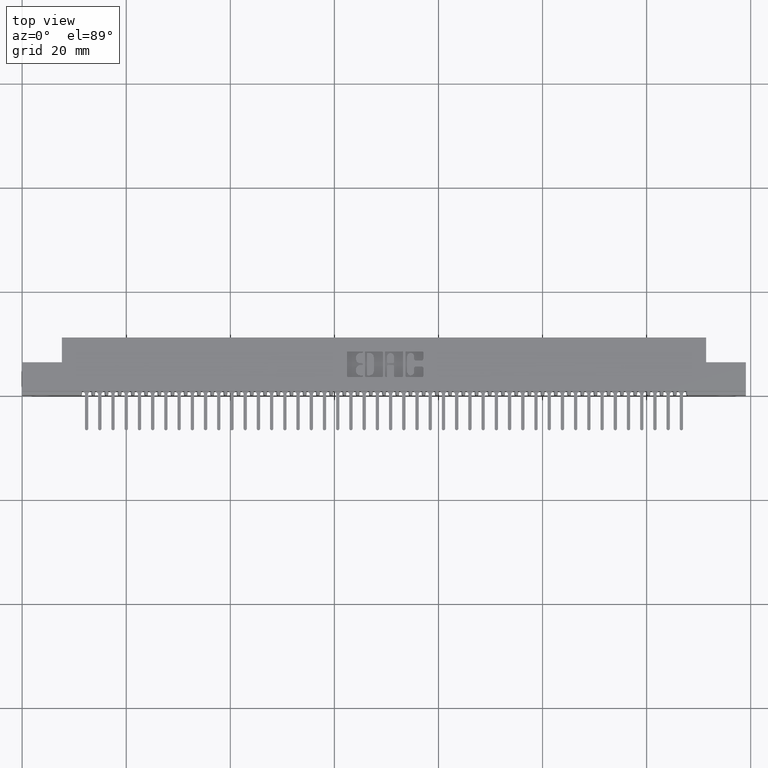
[diagram: clean part render]
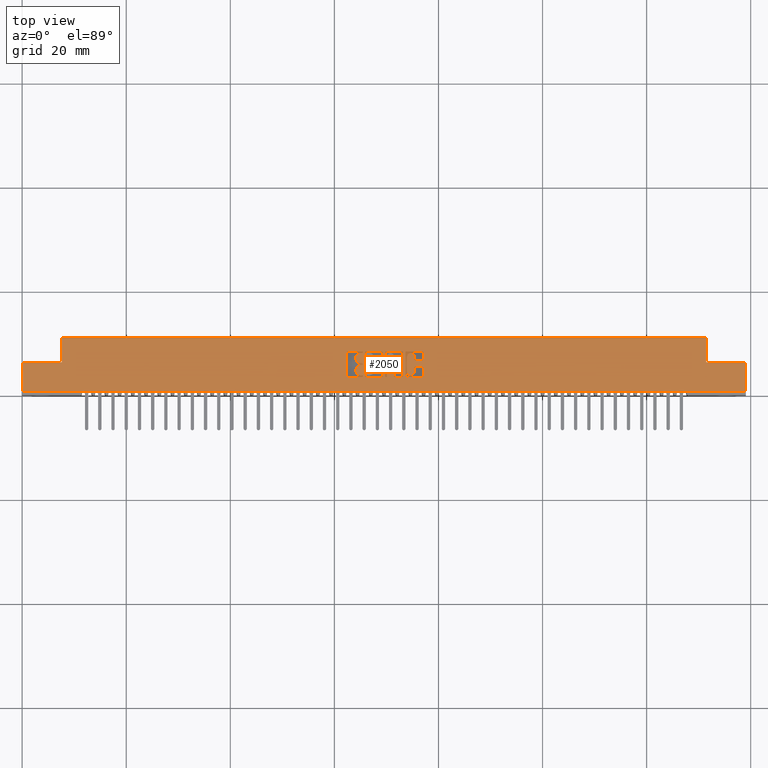
[diagram: same view with one face highlighted and labeled with its STEP entity id]
A machine part, top view. The second image highlights one B-rep face of the part: STEP entity #2050.
In plain terms, the highlighted planar face has unit normal (0, 0, -1).
Its self-contained STEP definition (entity closure, byte-faithful):
#6 = CARTESIAN_POINT ( 'NONE',  ( 2.570633606535335200, 0.1427142671046498500, 0.0000000000000000000 ) ) ;
#161 = CARTESIAN_POINT ( 'NONE',  ( 0.0000000000000000000, 0.2153502266127594300, 0.0000000000000000000 ) ) ;
#231 = LINE ( 'NONE', #32232, #20468 ) ;
#371 = EDGE_LOOP ( 'NONE', ( #30347, #39809, #19286, #41382, #15879, #19666, #34605, #27005, #25622, #21007, #4348, #27406, #33699, #38010 ) ) ;
#417 = VERTEX_POINT ( 'NONE', #45062 ) ;
#433 = VERTEX_POINT ( 'NONE', #23703 ) ;
#475 = DIRECTION ( 'NONE',  ( 1.000000000000000000, 0.0000000000000000000, 0.0000000000000000000 ) ) ;
#575 = DIRECTION ( 'NONE',  ( 0.0000000000000000000, 1.000000000000000000, -0.0000000000000000000 ) ) ;
#582 = DIRECTION ( 'NONE',  ( 1.000000000000000000, 0.0000000000000000000, 0.0000000000000000000 ) ) ;
#620 = CARTESIAN_POINT ( 'NONE',  ( 2.570633606415388500, 0.2271290308573587200, 0.0000000000000000000 ) ) ;
#638 = ORIENTED_EDGE ( 'NONE', *, *, #40673, .F. ) ;
#799 = VECTOR ( 'NONE', #26635, 39.37007874015748100 ) ;
#913 = VERTEX_POINT ( 'NONE', #620 ) ;
#966 = CARTESIAN_POINT ( 'NONE',  ( 2.525726915352927400, 0.0000000000000000000, 0.0000000000000000000 ) ) ;
#1032 = CARTESIAN_POINT ( 'NONE',  ( 2.593455039759168900, 0.3223410318342119800, 0.0000000000000000000 ) ) ;
#1056 = VECTOR ( 'NONE', #29722, 39.37007874015748100 ) ;
#1323 = DIRECTION ( 'NONE',  ( -0.0000000000000000000, 0.0000000000000000000, 1.000000000000000000 ) ) ;
#1488 = CARTESIAN_POINT ( 'NONE',  ( 0.0000000000000000000, 0.3321567020380529800, 0.0000000000000000000 ) ) ;
#1532 = VERTEX_POINT ( 'NONE', #47882 ) ;
#1624 = CARTESIAN_POINT ( 'NONE',  ( 2.456526440416115300, 0.1456589681657918500, 0.0000000000000000000 ) ) ;
#1921 = ORIENTED_EDGE ( 'NONE', *, *, #13620, .F. ) ;
#1938 = VERTEX_POINT ( 'NONE', #44263 ) ;
#2027 = DIRECTION ( 'NONE',  ( -0.0000000000000000000, 1.000000000000000000, -0.0000000000000000000 ) ) ;
#2050 = ADVANCED_FACE ( 'NONE', ( #41632, #7341, #40298, #28946, #17494 ), #31196, .F. ) ;
#2056 = CARTESIAN_POINT ( 'NONE',  ( 2.728911288571669300, 0.3223410318342119800, 0.0000000000000000000 ) ) ;
#2176 = VERTEX_POINT ( 'NONE', #48619 ) ;
#2216 = AXIS2_PLACEMENT_3D ( 'NONE', #8499, #38574, #12866 ) ;
#2740 = EDGE_CURVE ( 'NONE', #4884, #41142, #20652, .T. ) ;
#2814 = VECTOR ( 'NONE', #26765, 39.37007874015748100 ) ;
#2837 = CARTESIAN_POINT ( 'NONE',  ( 2.759830649713646900, 0.2173133606535475000, 0.0000000000000000000 ) ) ;
#2972 = DIRECTION ( 'NONE',  ( 1.000000000000000000, 0.0000000000000000000, 0.0000000000000000000 ) ) ;
#3115 = CARTESIAN_POINT ( 'NONE',  ( 2.964978156973165900, 0.0000000000000000000, 0.0000000000000000000 ) ) ;
#3395 = CARTESIAN_POINT ( 'NONE',  ( 2.603270709962975700, 0.1358432979619850800, 0.0000000000000000000 ) ) ;
#3472 = EDGE_CURVE ( 'NONE', #17637, #5088, #5116, .T. ) ;
#3493 = AXIS2_PLACEMENT_3D ( 'NONE', #44868, #19255, #49206 ) ;
#3785 = LINE ( 'NONE', #9847, #25356 ) ;
#3808 = CARTESIAN_POINT ( 'NONE',  ( 2.557137060005083600, 0.2408709691426857400, 0.0000000000000000000 ) ) ;
#3901 = VERTEX_POINT ( 'NONE', #31385 ) ;
#3968 = VECTOR ( 'NONE', #21717, 39.37007874015748100 ) ;
#4100 = CIRCLE ( 'NONE', #28766, 0.009815670203787768200 ) ;
#4166 = DIRECTION ( 'NONE',  ( -0.0000000000000000000, 0.0000000000000000000, 1.000000000000000000 ) ) ;
#4180 = DIRECTION ( 'NONE',  ( -0.0000000000000000000, 0.0000000000000000000, 1.000000000000000000 ) ) ;
#4206 = CIRCLE ( 'NONE', #39055, 0.006870969142663458500 ) ;
#4300 = DIRECTION ( 'NONE',  ( 1.000000000000000000, 0.0000000000000000000, 0.0000000000000000000 ) ) ;
#4348 = ORIENTED_EDGE ( 'NONE', *, *, #2740, .T. ) ;
#4367 = AXIS2_PLACEMENT_3D ( 'NONE', #41600, #15914, #45869 ) ;
#4679 = CARTESIAN_POINT ( 'NONE',  ( 2.802528815100187900, 0.2173133606535546900, 0.0000000000000000000 ) ) ;
#4711 = VECTOR ( 'NONE', #582, 39.37007874015748100 ) ;
#4826 = AXIS2_PLACEMENT_3D ( 'NONE', #41322, #15634, #45596 ) ;
#4839 = ORIENTED_EDGE ( 'NONE', *, *, #27947, .F. ) ;
#4864 = DIRECTION ( 'NONE',  ( 1.000000000000000000, 0.0000000000000000000, 0.0000000000000000000 ) ) ;
#4884 = VERTEX_POINT ( 'NONE', #2837 ) ;
#4983 = ORIENTED_EDGE ( 'NONE', *, *, #39178, .F. ) ;
#5012 = DIRECTION ( 'NONE',  ( -0.0000000000000000000, 0.0000000000000000000, 1.000000000000000000 ) ) ;
#5088 = VERTEX_POINT ( 'NONE', #11783 ) ;
#5116 = CIRCLE ( 'NONE', #53251, 0.009815670203795964800 ) ;
#5125 = LINE ( 'NONE', #15484, #26719 ) ;
#5126 = DIRECTION ( 'NONE',  ( 0.0000000000000000000, -1.000000000000000000, 0.0000000000000000000 ) ) ;
#5192 = ORIENTED_EDGE ( 'NONE', *, *, #24186, .F. ) ;
#5278 = EDGE_CURVE ( 'NONE', #31870, #45665, #15028, .T. ) ;
#5309 = CARTESIAN_POINT ( 'NONE',  ( 5.175000000000000700, 0.2500000000000000000, -1.836970198721029400E-017 ) ) ;
#5513 = CARTESIAN_POINT ( 'NONE',  ( 0.0000000000000000000, 0.4370000000000000000, 0.0000000000000000000 ) ) ;
#5561 = CARTESIAN_POINT ( 'NONE',  ( 2.719095618367861600, 0.1456589681657918500, 0.0000000000000000000 ) ) ;
#5591 = CARTESIAN_POINT ( 'NONE',  ( 2.812344485303985000, 0.1456589681657897400, 0.0000000000000000000 ) ) ;
#5617 = EDGE_CURVE ( 'NONE', #23593, #4884, #20401, .T. ) ;
#5933 = CIRCLE ( 'NONE', #52128, 0.006870969142662365600 ) ;
#5960 = CARTESIAN_POINT ( 'NONE',  ( 2.593455039759168900, 0.1456589681657918500, 0.0000000000000000000 ) ) ;
#5978 = VERTEX_POINT ( 'NONE', #44947 ) ;
#6535 = ORIENTED_EDGE ( 'NONE', *, *, #17389, .F. ) ;
#6614 = ORIENTED_EDGE ( 'NONE', *, *, #12345, .F. ) ;
#6644 = CARTESIAN_POINT ( 'NONE',  ( 2.456526440416115300, 0.0000000000000000000, 0.0000000000000000000 ) ) ;
#6669 = CARTESIAN_POINT ( 'NONE',  ( 2.974793827176977600, 0.2629562271012355600, 0.0000000000000000000 ) ) ;
#6886 = DIRECTION ( 'NONE',  ( 0.0000000000000000000, 1.000000000000000000, -0.0000000000000000000 ) ) ;
#7089 = EDGE_CURVE ( 'NONE', #11042, #29655, #12098, .T. ) ;
#7093 = VECTOR ( 'NONE', #40429, 39.37007874015748100 ) ;
#7135 = DIRECTION ( 'NONE',  ( 0.0000000000000000000, -1.000000000000000000, 0.0000000000000000000 ) ) ;
#7283 = AXIS2_PLACEMENT_3D ( 'NONE', #14065, #44066, #18415 ) ;
#7341 = FACE_BOUND ( 'NONE', #55038, .T. ) ;
#7488 = VERTEX_POINT ( 'NONE', #29689 ) ;
#7548 = CIRCLE ( 'NONE', #18289, 0.009815670203840221000 ) ;
#7729 = CARTESIAN_POINT ( 'NONE',  ( 3.024362961706131600, 0.3223410318342128700, 0.0000000000000000000 ) ) ;
#7765 = CARTESIAN_POINT ( 'NONE',  ( 5.475000000000001400, 0.2500000000000000000, 0.0000000000000000000 ) ) ;
#7776 = VERTEX_POINT ( 'NONE', #1624 ) ;
#7795 = DIRECTION ( 'NONE',  ( 0.0000000000000000000, -1.000000000000000000, 0.0000000000000000000 ) ) ;
#7867 = VERTEX_POINT ( 'NONE', #6669 ) ;
#7902 = ORIENTED_EDGE ( 'NONE', *, *, #31006, .F. ) ;
#8161 = VECTOR ( 'NONE', #26464, 39.37007874015748100 ) ;
#8208 = EDGE_CURVE ( 'NONE', #13588, #433, #9924, .T. ) ;
#8214 = AXIS2_PLACEMENT_3D ( 'NONE', #24009, #53908, #28346 ) ;
#8261 = CARTESIAN_POINT ( 'NONE',  ( 2.466342110619922100, 0.1456589681657918500, 0.0000000000000000000 ) ) ;
#8268 = ORIENTED_EDGE ( 'NONE', *, *, #36313, .F. ) ;
#8345 = EDGE_CURVE ( 'NONE', #33428, #7867, #13288, .T. ) ;
#8499 = CARTESIAN_POINT ( 'NONE',  ( 2.603270709962975700, 0.1456589681657918500, 0.0000000000000000000 ) ) ;
#8637 = VERTEX_POINT ( 'NONE', #46811 ) ;
#8790 = EDGE_LOOP ( 'NONE', ( #42376, #22121, #44724, #37487, #51097, #6614, #36783, #29043, #23255, #22143, #21262, #6535, #30947, #44933, #31576, #36863, #5192, #20713, #44334, #7902 ) ) ;
#8888 = CIRCLE ( 'NONE', #27903, 0.006870969142663458500 ) ;
#8981 = DIRECTION ( 'NONE',  ( 1.000000000000000000, 0.0000000000000000000, 0.0000000000000000000 ) ) ;
#9125 = VECTOR ( 'NONE', #27294, 39.37007874015748100 ) ;
#9204 = VERTEX_POINT ( 'NONE', #3395 ) ;
#9212 = LINE ( 'NONE', #23676, #10608 ) ;
#9378 = CARTESIAN_POINT ( 'NONE',  ( 2.938721239177998400, 0.1758421540424549000, 0.0000000000000000000 ) ) ;
#9421 = CARTESIAN_POINT ( 'NONE',  ( 2.719095618367827900, 0.3223410318342118700, 0.0000000000000000000 ) ) ;
#9433 = EDGE_CURVE ( 'NONE', #25430, #28883, #33071, .T. ) ;
#9774 = CARTESIAN_POINT ( 'NONE',  ( 2.746088711428330800, 0.1427142671046498500, 0.0000000000000000000 ) ) ;
#9833 = DIRECTION ( 'NONE',  ( -0.0000000000000000000, -1.000000000000000000, -0.0000000000000000000 ) ) ;
#9847 = CARTESIAN_POINT ( 'NONE',  ( -0.0000000000000000000, 0.2629562271012355600, 0.0000000000000000000 ) ) ;
#9853 = VECTOR ( 'NONE', #10990, 39.37007874015748100 ) ;
#9881 = DIRECTION ( 'NONE',  ( 1.000000000000000000, 0.0000000000000000000, 0.0000000000000000000 ) ) ;
#9921 = AXIS2_PLACEMENT_3D ( 'NONE', #4679, #34756, #8981 ) ;
#9924 = LINE ( 'NONE', #17583, #20082 ) ;
#9990 = DIRECTION ( 'NONE',  ( -0.0000000000000000000, 0.0000000000000000000, 1.000000000000000000 ) ) ;
#10107 = AXIS2_PLACEMENT_3D ( 'NONE', #30795, #5012, #35084 ) ;
#10130 = CARTESIAN_POINT ( 'NONE',  ( 2.964978156973165900, 0.2727718973050470800, 0.0000000000000000000 ) ) ;
#10169 = ORIENTED_EDGE ( 'NONE', *, *, #17676, .F. ) ;
#10286 = CARTESIAN_POINT ( 'NONE',  ( 2.728911288571669300, 0.0000000000000000000, 0.0000000000000000000 ) ) ;
#10372 = CARTESIAN_POINT ( 'NONE',  ( 0.0000000000000000000, 0.3321567020380529800, 0.0000000000000000000 ) ) ;
#10399 = EDGE_CURVE ( 'NONE', #28287, #11243, #42990, .T. ) ;
#10411 = CARTESIAN_POINT ( 'NONE',  ( 2.802528815100187900, 0.2271290308573517000, 0.0000000000000000000 ) ) ;
#10460 = CARTESIAN_POINT ( 'NONE',  ( 2.728911288571669300, 0.1456589681657918500, 0.0000000000000000000 ) ) ;
#10477 = DIRECTION ( 'NONE',  ( 0.0000000000000000000, 1.000000000000000000, -0.0000000000000000000 ) ) ;
#10593 = VERTEX_POINT ( 'NONE', #7765 ) ;
#10608 = VECTOR ( 'NONE', #2027, 39.37007874015748100 ) ;
#10634 = VERTEX_POINT ( 'NONE', #42513 ) ;
#10638 = CARTESIAN_POINT ( 'NONE',  ( 2.898722383097458000, 0.1456589681657918500, 0.0000000000000000000 ) ) ;
#10734 = EDGE_CURVE ( 'NONE', #49117, #21509, #15462, .T. ) ;
#10770 = CARTESIAN_POINT ( 'NONE',  ( 2.746088711428330800, 0.3223410318342119800, 0.0000000000000000000 ) ) ;
#10820 = EDGE_CURVE ( 'NONE', #29810, #16118, #44274, .T. ) ;
#10851 = CARTESIAN_POINT ( 'NONE',  ( 0.0000000000000000000, 0.2408709691426857400, 0.0000000000000000000 ) ) ;
#10922 = CARTESIAN_POINT ( 'NONE',  ( 5.475000000000001400, 0.03100000000000003800, -6.829619984160658000E-017 ) ) ;
#10990 = DIRECTION ( 'NONE',  ( 0.0000000000000000000, -1.000000000000000000, 0.0000000000000000000 ) ) ;
#11042 = VERTEX_POINT ( 'NONE', #27914 ) ;
#11141 = DIRECTION ( 'NONE',  ( -1.000000000000000000, 0.0000000000000000000, 0.0000000000000000000 ) ) ;
#11243 = VERTEX_POINT ( 'NONE', #29212 ) ;
#11257 = VERTEX_POINT ( 'NONE', #33472 ) ;
#11358 = AXIS2_PLACEMENT_3D ( 'NONE', #25606, #55506, #29923 ) ;
#11360 = EDGE_CURVE ( 'NONE', #18469, #46305, #5933, .T. ) ;
#11428 = ORIENTED_EDGE ( 'NONE', *, *, #17606, .F. ) ;
#11598 = AXIS2_PLACEMENT_3D ( 'NONE', #44006, #18354, #48317 ) ;
#11684 = DIRECTION ( 'NONE',  ( 0.0000000000000000000, -1.000000000000000000, 0.0000000000000000000 ) ) ;
#11731 = LINE ( 'NONE', #19280, #33253 ) ;
#11783 = CARTESIAN_POINT ( 'NONE',  ( 2.881544960240806300, 0.1456589681657827500, 0.0000000000000000000 ) ) ;
#12022 = VECTOR ( 'NONE', #46054, 39.37007874015748100 ) ;
#12033 = LINE ( 'NONE', #21763, #22162 ) ;
#12071 = DIRECTION ( 'NONE',  ( 1.000000000000000000, 0.0000000000000000000, 0.0000000000000000000 ) ) ;
#12082 = VERTEX_POINT ( 'NONE', #46545 ) ;
#12098 = CIRCLE ( 'NONE', #44103, 0.009815670203840767500 ) ;
#12345 = EDGE_CURVE ( 'NONE', #25430, #14359, #42106, .T. ) ;
#12486 = LINE ( 'NONE', #25397, #1056 ) ;
#12632 = DIRECTION ( 'NONE',  ( 1.000000000000000000, 0.0000000000000000000, 0.0000000000000000000 ) ) ;
#12866 = DIRECTION ( 'NONE',  ( 1.000000000000000000, 0.0000000000000000000, 0.0000000000000000000 ) ) ;
#12960 = AXIS2_PLACEMENT_3D ( 'NONE', #18128, #48100, #22457 ) ;
#13089 = EDGE_CURVE ( 'NONE', #28288, #26297, #48713, .T. ) ;
#13288 = CIRCLE ( 'NONE', #24442, 0.009815670203811809700 ) ;
#13369 = VECTOR ( 'NONE', #53755, 39.37007874015748100 ) ;
#13472 = VERTEX_POINT ( 'NONE', #5309 ) ;
#13487 = VERTEX_POINT ( 'NONE', #52576 ) ;
#13517 = CARTESIAN_POINT ( 'NONE',  ( 3.024362961706168500, 0.3321567020380529800, 0.0000000000000000000 ) ) ;
#13528 = ORIENTED_EDGE ( 'NONE', *, *, #31323, .F. ) ;
#13550 = CARTESIAN_POINT ( 'NONE',  ( 2.812344485303985000, 0.0000000000000000000, 0.0000000000000000000 ) ) ;
#13588 = VERTEX_POINT ( 'NONE', #40439 ) ;
#13620 = EDGE_CURVE ( 'NONE', #21509, #53513, #11731, .T. ) ;
#13683 = VECTOR ( 'NONE', #5126, 39.37007874015748100 ) ;
#13741 = DIRECTION ( 'NONE',  ( 1.000000000000000000, 0.0000000000000000000, 0.0000000000000000000 ) ) ;
#13782 = DIRECTION ( 'NONE',  ( 1.000000000000000000, 0.0000000000000000000, 0.0000000000000000000 ) ) ;
#14065 = CARTESIAN_POINT ( 'NONE',  ( 2.557137060005083600, 0.2722811137948602500, 0.0000000000000000000 ) ) ;
#14176 = ORIENTED_EDGE ( 'NONE', *, *, #45232, .F. ) ;
#14202 = DIRECTION ( 'NONE',  ( 1.000000000000000000, 0.0000000000000000000, 0.0000000000000000000 ) ) ;
#14359 = VERTEX_POINT ( 'NONE', #32686 ) ;
#14376 = AXIS2_PLACEMENT_3D ( 'NONE', #9378, #39445, #13741 ) ;
#14454 = EDGE_CURVE ( 'NONE', #417, #53205, #25146, .T. ) ;
#14456 = ORIENTED_EDGE ( 'NONE', *, *, #33049, .F. ) ;
#14505 = EDGE_CURVE ( 'NONE', #12082, #1532, #21094, .T. ) ;
#14668 = VERTEX_POINT ( 'NONE', #33317 ) ;
#14739 = CIRCLE ( 'NONE', #45988, 0.006870969142657995000 ) ;
#14784 = EDGE_CURVE ( 'NONE', #913, #49641, #8888, .T. ) ;
#14785 = LINE ( 'NONE', #28599, #47630 ) ;
#15028 = CIRCLE ( 'NONE', #25734, 0.009815670203795418300 ) ;
#15061 = CARTESIAN_POINT ( 'NONE',  ( 2.964978156973165900, 0.2921578454992617700, 0.0000000000000000000 ) ) ;
#15168 = CARTESIAN_POINT ( 'NONE',  ( 2.822160155507787800, 0.1456589681657897400, 0.0000000000000000000 ) ) ;
#15212 = CARTESIAN_POINT ( 'NONE',  ( 2.525726915352909200, 0.2722811137948602500, 0.0000000000000000000 ) ) ;
#15360 = CIRCLE ( 'NONE', #10107, 0.02625691779517394200 ) ;
#15462 = LINE ( 'NONE', #51665, #3968 ) ;
#15484 = CARTESIAN_POINT ( 'NONE',  ( 0.0000000000000000000, 0.3321567020380346600, 0.0000000000000000000 ) ) ;
#15582 = CARTESIAN_POINT ( 'NONE',  ( 3.034178631909972200, 0.0000000000000000000, 0.0000000000000000000 ) ) ;
#15634 = DIRECTION ( 'NONE',  ( -0.0000000000000000000, 0.0000000000000000000, 1.000000000000000000 ) ) ;
#15650 = AXIS2_PLACEMENT_3D ( 'NONE', #9421, #39490, #13782 ) ;
#15684 = EDGE_CURVE ( 'NONE', #46939, #48342, #41733, .T. ) ;
#15879 = ORIENTED_EDGE ( 'NONE', *, *, #44832, .T. ) ;
#15914 = DIRECTION ( 'NONE',  ( -0.0000000000000000000, 0.0000000000000000000, 1.000000000000000000 ) ) ;
#16028 = LINE ( 'NONE', #22023, #37498 ) ;
#16118 = VERTEX_POINT ( 'NONE', #42529 ) ;
#16399 = AXIS2_PLACEMENT_3D ( 'NONE', #29972, #4166, #34240 ) ;
#16509 = VECTOR ( 'NONE', #40159, 39.37007874015748100 ) ;
#16585 = LINE ( 'NONE', #161, #38031 ) ;
#16748 = EDGE_CURVE ( 'NONE', #10634, #48342, #41697, .T. ) ;
#16839 = ORIENTED_EDGE ( 'NONE', *, *, #10399, .F. ) ;
#16850 = EDGE_CURVE ( 'NONE', #10634, #45665, #26302, .T. ) ;
#17256 = EDGE_CURVE ( 'NONE', #29810, #28287, #14785, .T. ) ;
#17389 = EDGE_CURVE ( 'NONE', #1532, #47257, #50990, .T. ) ;
#17494 = FACE_BOUND ( 'NONE', #371, .T. ) ;
#17583 = CARTESIAN_POINT ( 'NONE',  ( -9.340608265024028400E-016, 0.1358432979619699200, 0.0000000000000000000 ) ) ;
#17606 = EDGE_CURVE ( 'NONE', #34004, #28952, #41580, .T. ) ;
#17637 = VERTEX_POINT ( 'NONE', #36385 ) ;
#17669 = CARTESIAN_POINT ( 'NONE',  ( 3.034178631909940200, 0.0000000000000000000, 0.0000000000000000000 ) ) ;
#17676 = EDGE_CURVE ( 'NONE', #8637, #49496, #47578, .T. ) ;
#17789 = CARTESIAN_POINT ( 'NONE',  ( 5.475000000000001400, 0.03100000000000003800, -6.829619984160658000E-017 ) ) ;
#17835 = DIRECTION ( 'NONE',  ( 1.000000000000000000, 0.0000000000000000000, 0.0000000000000000000 ) ) ;
#17864 = VERTEX_POINT ( 'NONE', #46264 ) ;
#17897 = DIRECTION ( 'NONE',  ( -0.0000000000000000000, 0.0000000000000000000, 1.000000000000000000 ) ) ;
#18128 = CARTESIAN_POINT ( 'NONE',  ( 2.557137060005125300, 0.2870046191005217200, 0.0000000000000000000 ) ) ;
#18215 = CARTESIAN_POINT ( 'NONE',  ( 2.912464321382818500, 0.1758421540424549000, 0.0000000000000000000 ) ) ;
#18289 = AXIS2_PLACEMENT_3D ( 'NONE', #7729, #37794, #12071 ) ;
#18352 = ORIENTED_EDGE ( 'NONE', *, *, #30925, .T. ) ;
#18354 = DIRECTION ( 'NONE',  ( -0.0000000000000000000, 0.0000000000000000000, 1.000000000000000000 ) ) ;
#18415 = DIRECTION ( 'NONE',  ( 1.000000000000000000, 0.0000000000000000000, 0.0000000000000000000 ) ) ;
#18449 = CIRCLE ( 'NONE', #7283, 0.03141014465217440600 ) ;
#18469 = VERTEX_POINT ( 'NONE', #55362 ) ;
#18593 = LINE ( 'NONE', #10372, #7093 ) ;
#18635 = CARTESIAN_POINT ( 'NONE',  ( 2.912464321382818500, 0.0000000000000000000, 0.0000000000000000000 ) ) ;
#18709 = DIRECTION ( 'NONE',  ( -0.0000000000000000000, 0.0000000000000000000, 1.000000000000000000 ) ) ;
#18814 = CARTESIAN_POINT ( 'NONE',  ( 2.769646319917449700, 0.2271290308573505600, 0.0000000000000000000 ) ) ;
#18862 = ORIENTED_EDGE ( 'NONE', *, *, #34168, .F. ) ;
#19091 = CARTESIAN_POINT ( 'NONE',  ( 3.024362961706166700, 0.2629562271012354000, 0.0000000000000000000 ) ) ;
#19121 = CARTESIAN_POINT ( 'NONE',  ( 2.557137060005083600, 0.2271290308573587200, 0.0000000000000000000 ) ) ;
#19165 = CIRCLE ( 'NONE', #39062, 0.006870969142648706400 ) ;
#19239 = EDGE_CURVE ( 'NONE', #25335, #14668, #16585, .T. ) ;
#19255 = DIRECTION ( 'NONE',  ( -0.0000000000000000000, 0.0000000000000000000, 1.000000000000000000 ) ) ;
#19280 = CARTESIAN_POINT ( 'NONE',  ( 0.0000000000000000000, 0.4370000000000000000, 0.0000000000000000000 ) ) ;
#19286 = ORIENTED_EDGE ( 'NONE', *, *, #40920, .T. ) ;
#19486 = DIRECTION ( 'NONE',  ( 1.000000000000000000, 0.0000000000000000000, 0.0000000000000000000 ) ) ;
#19519 = DIRECTION ( 'NONE',  ( 1.000000000000000000, 0.0000000000000000000, 0.0000000000000000000 ) ) ;
#19666 = ORIENTED_EDGE ( 'NONE', *, *, #27677, .F. ) ;
#19689 = LINE ( 'NONE', #17789, #8161 ) ;
#19799 = CARTESIAN_POINT ( 'NONE',  ( 2.964978156973178800, 0.0000000000000000000, 0.0000000000000000000 ) ) ;
#20065 = DIRECTION ( 'NONE',  ( -0.0000000000000000000, 0.0000000000000000000, 1.000000000000000000 ) ) ;
#20082 = VECTOR ( 'NONE', #43235, 39.37007874015748100 ) ;
#20182 = CARTESIAN_POINT ( 'NONE',  ( 0.2999999999999999900, 0.4370000000000000000, 0.0000000000000000000 ) ) ;
#20401 = CIRCLE ( 'NONE', #24662, 0.009815670203803066700 ) ;
#20424 = VECTOR ( 'NONE', #17835, 39.37007874015748100 ) ;
#20468 = VECTOR ( 'NONE', #19486, 39.37007874015748100 ) ;
#20520 = CARTESIAN_POINT ( 'NONE',  ( 2.974793827176966500, 0.2055345564089714500, 0.0000000000000000000 ) ) ;
#20652 = LINE ( 'NONE', #27673, #9125 ) ;
#20713 = ORIENTED_EDGE ( 'NONE', *, *, #21306, .F. ) ;
#20744 = CARTESIAN_POINT ( 'NONE',  ( 2.908538053301265200, 0.1456589681657918500, 0.0000000000000000000 ) ) ;
#20902 = EDGE_CURVE ( 'NONE', #17864, #7776, #51469, .T. ) ;
#21007 = ORIENTED_EDGE ( 'NONE', *, *, #5617, .T. ) ;
#21094 = CIRCLE ( 'NONE', #37545, 0.009815670203806345400 ) ;
#21129 = CARTESIAN_POINT ( 'NONE',  ( 2.881544960240806300, 0.3223410318342028700, 0.0000000000000000000 ) ) ;
#21223 = DIRECTION ( 'NONE',  ( -0.0000000000000000000, 0.0000000000000000000, 1.000000000000000000 ) ) ;
#21262 = ORIENTED_EDGE ( 'NONE', *, *, #51849, .F. ) ;
#21301 = CARTESIAN_POINT ( 'NONE',  ( 2.755904381632127400, 0.3223410318342119800, 0.0000000000000000000 ) ) ;
#21306 = EDGE_CURVE ( 'NONE', #23456, #30976, #18593, .T. ) ;
#21509 = VERTEX_POINT ( 'NONE', #20182 ) ;
#21572 = VERTEX_POINT ( 'NONE', #29373 ) ;
#21717 = DIRECTION ( 'NONE',  ( -0.0000000000000000000, 1.000000000000000000, -0.0000000000000000000 ) ) ;
#21763 = CARTESIAN_POINT ( 'NONE',  ( -7.783740811588811200E-015, 0.2271290308572556400, 0.0000000000000000000 ) ) ;
#22023 = CARTESIAN_POINT ( 'NONE',  ( -0.0000000000000000000, 0.1358432979619850800, 0.0000000000000000000 ) ) ;
#22040 = VERTEX_POINT ( 'NONE', #15212 ) ;
#22121 = ORIENTED_EDGE ( 'NONE', *, *, #31448, .F. ) ;
#22143 = ORIENTED_EDGE ( 'NONE', *, *, #19239, .F. ) ;
#22162 = VECTOR ( 'NONE', #26084, 39.37007874015748100 ) ;
#22188 = ORIENTED_EDGE ( 'NONE', *, *, #37783, .T. ) ;
#22345 = CIRCLE ( 'NONE', #9921, 0.009815670203797057700 ) ;
#22457 = DIRECTION ( 'NONE',  ( 1.000000000000000000, 0.0000000000000000000, 0.0000000000000000000 ) ) ;
#22578 = ORIENTED_EDGE ( 'NONE', *, *, #45558, .F. ) ;
#22629 = CARTESIAN_POINT ( 'NONE',  ( 3.034178631909972200, 0.2727718973050405300, 0.0000000000000000000 ) ) ;
#22809 = DIRECTION ( 'NONE',  ( -1.000000000000000000, 0.0000000000000000000, 0.0000000000000000000 ) ) ;
#22942 = DIRECTION ( 'NONE',  ( -1.000000000000000000, 0.0000000000000000000, -0.0000000000000000000 ) ) ;
#22955 = CARTESIAN_POINT ( 'NONE',  ( 2.964978156973178800, 0.1758421540424549000, 0.0000000000000000000 ) ) ;
#23060 = DIRECTION ( 'NONE',  ( 0.0000000000000000000, 0.0000000000000000000, -1.000000000000000000 ) ) ;
#23145 = AXIS2_PLACEMENT_3D ( 'NONE', #8261, #38336, #12632 ) ;
#23255 = ORIENTED_EDGE ( 'NONE', *, *, #42187, .F. ) ;
#23455 = CIRCLE ( 'NONE', #15650, 0.009815670203841313900 ) ;
#23456 = VERTEX_POINT ( 'NONE', #13517 ) ;
#23475 = CARTESIAN_POINT ( 'NONE',  ( 2.525726915352927400, 0.1957188862052024500, 0.0000000000000000000 ) ) ;
#23546 = VERTEX_POINT ( 'NONE', #5591 ) ;
#23593 = VERTEX_POINT ( 'NONE', #18814 ) ;
#23676 = CARTESIAN_POINT ( 'NONE',  ( 5.175000000000000700, 0.2500000000000000000, -1.836970198721029400E-017 ) ) ;
#23701 = ORIENTED_EDGE ( 'NONE', *, *, #48119, .F. ) ;
#23703 = CARTESIAN_POINT ( 'NONE',  ( 2.570633606415414300, 0.1358432979619876000, 0.0000000000000000000 ) ) ;
#23742 = CARTESIAN_POINT ( 'NONE',  ( 0.0000000000000000000, 0.4370000000000000000, 0.0000000000000000000 ) ) ;
#24009 = CARTESIAN_POINT ( 'NONE',  ( 2.570633606535351200, 0.3252857328953881500, 0.0000000000000000000 ) ) ;
#24097 = EDGE_CURVE ( 'NONE', #39119, #24579, #19689, .T. ) ;
#24186 = EDGE_CURVE ( 'NONE', #30976, #417, #28432, .T. ) ;
#24315 = CARTESIAN_POINT ( 'NONE',  ( 0.0000000000000000000, 0.2500000000000000000, 0.0000000000000000000 ) ) ;
#24442 = AXIS2_PLACEMENT_3D ( 'NONE', #35739, #9990, #40051 ) ;
#24579 = VERTEX_POINT ( 'NONE', #33867 ) ;
#24601 = DIRECTION ( 'NONE',  ( 1.000000000000000000, 0.0000000000000000000, 0.0000000000000000000 ) ) ;
#24662 = AXIS2_PLACEMENT_3D ( 'NONE', #46855, #21223, #51176 ) ;
#24785 = DIRECTION ( 'NONE',  ( -0.0000000000000000000, 0.0000000000000000000, 1.000000000000000000 ) ) ;
#24816 = DIRECTION ( 'NONE',  ( 1.000000000000000000, 0.0000000000000000000, 0.0000000000000000000 ) ) ;
#25060 = DIRECTION ( 'NONE',  ( 1.000000000000000000, 0.0000000000000000000, 0.0000000000000000000 ) ) ;
#25095 = CARTESIAN_POINT ( 'NONE',  ( 2.871729290037011500, 0.3223410318342122500, 0.0000000000000000000 ) ) ;
#25146 = LINE ( 'NONE', #35196, #13683 ) ;
#25335 = VERTEX_POINT ( 'NONE', #26324 ) ;
#25356 = VECTOR ( 'NONE', #14202, 39.37007874015748100 ) ;
#25397 = CARTESIAN_POINT ( 'NONE',  ( 5.475000000000001400, 0.2500000000000000000, 0.0000000000000000000 ) ) ;
#25430 = VERTEX_POINT ( 'NONE', #18215 ) ;
#25606 = CARTESIAN_POINT ( 'NONE',  ( 3.024362961706152900, 0.2055345564089723400, 0.0000000000000000000 ) ) ;
#25619 = DIRECTION ( 'NONE',  ( 1.000000000000000000, 0.0000000000000000000, 0.0000000000000000000 ) ) ;
#25622 = ORIENTED_EDGE ( 'NONE', *, *, #25831, .T. ) ;
#25635 = DIRECTION ( 'NONE',  ( -0.0000000000000000000, 0.0000000000000000000, 1.000000000000000000 ) ) ;
#25648 = LINE ( 'NONE', #50332, #47059 ) ;
#25670 = VECTOR ( 'NONE', #50849, 39.37007874015748100 ) ;
#25734 = AXIS2_PLACEMENT_3D ( 'NONE', #25095, #24785, #24601 ) ;
#25831 = EDGE_CURVE ( 'NONE', #40303, #23593, #12033, .T. ) ;
#26084 = DIRECTION ( 'NONE',  ( -1.000000000000000000, -3.427012734660361200E-014, 0.0000000000000000000 ) ) ;
#26136 = DIRECTION ( 'NONE',  ( 0.0000000000000000000, 1.000000000000000000, -0.0000000000000000000 ) ) ;
#26140 = DIRECTION ( 'NONE',  ( -1.000000000000000000, 0.0000000000000000000, 0.0000000000000000000 ) ) ;
#26252 = VECTOR ( 'NONE', #7795, 39.37007874015748100 ) ;
#26258 = EDGE_CURVE ( 'NONE', #28952, #13487, #23455, .T. ) ;
#26266 = DIRECTION ( 'NONE',  ( -0.0000000000000000000, 0.0000000000000000000, 1.000000000000000000 ) ) ;
#26297 = VERTEX_POINT ( 'NONE', #22629 ) ;
#26302 = LINE ( 'NONE', #26382, #4711 ) ;
#26324 = CARTESIAN_POINT ( 'NONE',  ( 3.024362961706156500, 0.2153502266127594300, 0.0000000000000000000 ) ) ;
#26382 = CARTESIAN_POINT ( 'NONE',  ( -0.0000000000000000000, 0.3321567020380085100, 0.0000000000000000000 ) ) ;
#26451 = CARTESIAN_POINT ( 'NONE',  ( 2.759830649713646900, 0.1427142671046498500, 0.0000000000000000000 ) ) ;
#26464 = DIRECTION ( 'NONE',  ( -1.000000000000000000, -0.0000000000000000000, -0.0000000000000000000 ) ) ;
#26635 = DIRECTION ( 'NONE',  ( -0.0000000000000000000, -1.000000000000000000, -0.0000000000000000000 ) ) ;
#26719 = VECTOR ( 'NONE', #11141, 39.37007874015748100 ) ;
#26765 = DIRECTION ( 'NONE',  ( 0.0000000000000000000, 1.000000000000000000, -0.0000000000000000000 ) ) ;
#27005 = ORIENTED_EDGE ( 'NONE', *, *, #28741, .T. ) ;
#27066 = CARTESIAN_POINT ( 'NONE',  ( 2.746088711428330800, 0.0000000000000000000, 0.0000000000000000000 ) ) ;
#27118 = CARTESIAN_POINT ( 'NONE',  ( 2.603270709963009900, 0.3223410318342119800, 0.0000000000000000000 ) ) ;
#27133 = EDGE_LOOP ( 'NONE', ( #27384, #36144, #23701, #14176, #18352, #1921, #50269, #30446 ) ) ;
#27294 = DIRECTION ( 'NONE',  ( 0.0000000000000000000, -1.000000000000000000, 0.0000000000000000000 ) ) ;
#27384 = ORIENTED_EDGE ( 'NONE', *, *, #38441, .T. ) ;
#27406 = ORIENTED_EDGE ( 'NONE', *, *, #44395, .F. ) ;
#27647 = CARTESIAN_POINT ( 'NONE',  ( 2.525726915352909200, 0.0000000000000000000, 0.0000000000000000000 ) ) ;
#27673 = CARTESIAN_POINT ( 'NONE',  ( 2.759830649713646900, 0.0000000000000000000, 0.0000000000000000000 ) ) ;
#27677 = EDGE_CURVE ( 'NONE', #23546, #54319, #53821, .T. ) ;
#27760 = ORIENTED_EDGE ( 'NONE', *, *, #47445, .F. ) ;
#27799 = LINE ( 'NONE', #5513, #37796 ) ;
#27903 = AXIS2_PLACEMENT_3D ( 'NONE', #51261, #25635, #55523 ) ;
#27914 = CARTESIAN_POINT ( 'NONE',  ( 2.603270709963009900, 0.3321567020380529800, 0.0000000000000000000 ) ) ;
#27947 = EDGE_CURVE ( 'NONE', #49641, #8637, #4206, .T. ) ;
#27954 = LINE ( 'NONE', #1488, #16509 ) ;
#28287 = VERTEX_POINT ( 'NONE', #40437 ) ;
#28288 = VERTEX_POINT ( 'NONE', #19091 ) ;
#28346 = DIRECTION ( 'NONE',  ( 1.000000000000000000, 0.0000000000000000000, 0.0000000000000000000 ) ) ;
#28432 = CIRCLE ( 'NONE', #11598, 0.009815670203841313900 ) ;
#28599 = CARTESIAN_POINT ( 'NONE',  ( -0.0000000000000000000, 0.3184147637527375800, 0.0000000000000000000 ) ) ;
#28696 = ORIENTED_EDGE ( 'NONE', *, *, #20902, .F. ) ;
#28741 = EDGE_CURVE ( 'NONE', #31188, #40303, #22345, .T. ) ;
#28766 = AXIS2_PLACEMENT_3D ( 'NONE', #20520, #50478, #24816 ) ;
#28850 = VECTOR ( 'NONE', #22809, 39.37007874015748100 ) ;
#28883 = VERTEX_POINT ( 'NONE', #22955 ) ;
#28912 = CARTESIAN_POINT ( 'NONE',  ( -1.778813761841807200E-014, 0.1495852362470064300, 0.0000000000000000000 ) ) ;
#28946 = FACE_BOUND ( 'NONE', #48444, .T. ) ;
#28952 = VERTEX_POINT ( 'NONE', #2056 ) ;
#29043 = ORIENTED_EDGE ( 'NONE', *, *, #45037, .F. ) ;
#29173 = AXIS2_PLACEMENT_3D ( 'NONE', #51891, #26266, #475 ) ;
#29212 = CARTESIAN_POINT ( 'NONE',  ( 2.577504575677999700, 0.3252857328953881500, 0.0000000000000000000 ) ) ;
#29214 = VERTEX_POINT ( 'NONE', #23475 ) ;
#29373 = CARTESIAN_POINT ( 'NONE',  ( 2.525726915352927400, 0.1809953808994922700, 0.0000000000000000000 ) ) ;
#29578 = ORIENTED_EDGE ( 'NONE', *, *, #17256, .F. ) ;
#29579 = VECTOR ( 'NONE', #26136, 39.37007874015748100 ) ;
#29655 = VERTEX_POINT ( 'NONE', #1032 ) ;
#29689 = CARTESIAN_POINT ( 'NONE',  ( 3.034178631909972200, 0.3223410318341967100, 0.0000000000000000000 ) ) ;
#29722 = DIRECTION ( 'NONE',  ( 1.000000000000000000, -0.0000000000000000000, 6.123233995736752500E-017 ) ) ;
#29810 = VERTEX_POINT ( 'NONE', #45097 ) ;
#29923 = DIRECTION ( 'NONE',  ( 1.000000000000000000, 0.0000000000000000000, 0.0000000000000000000 ) ) ;
#29972 = CARTESIAN_POINT ( 'NONE',  ( 2.557137060005109300, 0.1809953808994922700, 0.0000000000000000000 ) ) ;
#29991 = CARTESIAN_POINT ( 'NONE',  ( 2.570633606535309500, 0.2340000000000222500, 0.0000000000000000000 ) ) ;
#29992 = CARTESIAN_POINT ( 'NONE',  ( 5.175000000000000700, 0.4370000000000000000, -1.836970198721029400E-017 ) ) ;
#30099 = DIRECTION ( 'NONE',  ( -0.0000000000000000000, 0.0000000000000000000, 1.000000000000000000 ) ) ;
#30257 = EDGE_CURVE ( 'NONE', #31577, #29214, #44239, .T. ) ;
#30347 = ORIENTED_EDGE ( 'NONE', *, *, #16850, .T. ) ;
#30446 = ORIENTED_EDGE ( 'NONE', *, *, #46306, .F. ) ;
#30735 = CIRCLE ( 'NONE', #4826, 0.009815670203822736800 ) ;
#30795 = CARTESIAN_POINT ( 'NONE',  ( 2.938721239177991800, 0.2921578459575314700, 0.0000000000000000000 ) ) ;
#30925 = EDGE_CURVE ( 'NONE', #13472, #53513, #9212, .T. ) ;
#30947 = ORIENTED_EDGE ( 'NONE', *, *, #14505, .F. ) ;
#30976 = VERTEX_POINT ( 'NONE', #32483 ) ;
#31006 = EDGE_CURVE ( 'NONE', #26297, #7488, #48182, .T. ) ;
#31188 = VERTEX_POINT ( 'NONE', #52928 ) ;
#31196 = PLANE ( 'NONE',  #34577 ) ;
#31323 = EDGE_CURVE ( 'NONE', #433, #18469, #34749, .T. ) ;
#31385 = CARTESIAN_POINT ( 'NONE',  ( 2.964978156973178800, 0.2055345564089705900, 0.0000000000000000000 ) ) ;
#31395 = DIRECTION ( 'NONE',  ( 1.000000000000000000, 0.0000000000000000000, 0.0000000000000000000 ) ) ;
#31448 = EDGE_CURVE ( 'NONE', #7867, #28288, #3785, .T. ) ;
#31576 = ORIENTED_EDGE ( 'NONE', *, *, #51808, .F. ) ;
#31577 = VERTEX_POINT ( 'NONE', #19121 ) ;
#31803 = LINE ( 'NONE', #34894, #20424 ) ;
#31870 = VERTEX_POINT ( 'NONE', #21129 ) ;
#32004 = LINE ( 'NONE', #19799, #53406 ) ;
#32232 = CARTESIAN_POINT ( 'NONE',  ( 0.0000000000000000000, 0.2500000000000000000, 0.0000000000000000000 ) ) ;
#32413 = LINE ( 'NONE', #35020, #799 ) ;
#32483 = CARTESIAN_POINT ( 'NONE',  ( 2.908538053301299400, 0.3321567020380529800, 0.0000000000000000000 ) ) ;
#32686 = CARTESIAN_POINT ( 'NONE',  ( 2.912464321382818500, 0.2921578459575314700, 0.0000000000000000000 ) ) ;
#33049 = EDGE_CURVE ( 'NONE', #29655, #39649, #25648, .T. ) ;
#33071 = CIRCLE ( 'NONE', #14376, 0.02625691779518049900 ) ;
#33214 = ORIENTED_EDGE ( 'NONE', *, *, #10820, .T. ) ;
#33253 = VECTOR ( 'NONE', #53489, 39.37007874015748100 ) ;
#33317 = CARTESIAN_POINT ( 'NONE',  ( 2.974793827176966500, 0.2153502266127594300, 0.0000000000000000000 ) ) ;
#33334 = ORIENTED_EDGE ( 'NONE', *, *, #26258, .F. ) ;
#33384 = CARTESIAN_POINT ( 'NONE',  ( 2.881544960240806300, 0.0000000000000000000, 0.0000000000000000000 ) ) ;
#33428 = VERTEX_POINT ( 'NONE', #10130 ) ;
#33464 = ORIENTED_EDGE ( 'NONE', *, *, #30257, .T. ) ;
#33472 = CARTESIAN_POINT ( 'NONE',  ( 2.557137060005109300, 0.1495852362473104900, 0.0000000000000000000 ) ) ;
#33699 = ORIENTED_EDGE ( 'NONE', *, *, #15684, .T. ) ;
#33867 = CARTESIAN_POINT ( 'NONE',  ( 0.0000000000000000000, 0.03100000000000003800, -6.829619984160658000E-017 ) ) ;
#33901 = VECTOR ( 'NONE', #10477, 39.37007874015748100 ) ;
#34004 = VERTEX_POINT ( 'NONE', #10460 ) ;
#34168 = EDGE_CURVE ( 'NONE', #46305, #11257, #46252, .T. ) ;
#34240 = DIRECTION ( 'NONE',  ( 1.000000000000000000, 0.0000000000000000000, 0.0000000000000000000 ) ) ;
#34259 = DIRECTION ( 'NONE',  ( 1.000000000000000000, 0.0000000000000000000, 0.0000000000000000000 ) ) ;
#34310 = LINE ( 'NONE', #13550, #44344 ) ;
#34530 = LINE ( 'NONE', #33384, #45901 ) ;
#34577 = AXIS2_PLACEMENT_3D ( 'NONE', #23742, #23060, #22942 ) ;
#34605 = ORIENTED_EDGE ( 'NONE', *, *, #48788, .T. ) ;
#34749 = CIRCLE ( 'NONE', #29173, 0.006870969142662365600 ) ;
#34756 = DIRECTION ( 'NONE',  ( -0.0000000000000000000, 0.0000000000000000000, 1.000000000000000000 ) ) ;
#34894 = CARTESIAN_POINT ( 'NONE',  ( -0.0000000000000000000, 0.2271290308573587200, 0.0000000000000000000 ) ) ;
#35020 = CARTESIAN_POINT ( 'NONE',  ( 5.475000000000001400, 0.4370000000000000000, 0.0000000000000000000 ) ) ;
#35084 = DIRECTION ( 'NONE',  ( 1.000000000000000000, 0.0000000000000000000, 0.0000000000000000000 ) ) ;
#35196 = CARTESIAN_POINT ( 'NONE',  ( 2.898722383097458000, 0.0000000000000000000, 0.0000000000000000000 ) ) ;
#35316 = ORIENTED_EDGE ( 'NONE', *, *, #50273, .F. ) ;
#35378 = EDGE_CURVE ( 'NONE', #54397, #14359, #15360, .T. ) ;
#35436 = CIRCLE ( 'NONE', #2216, 0.009815670203806891800 ) ;
#35547 = CARTESIAN_POINT ( 'NONE',  ( 0.0000000000000000000, 0.1358432979619864900, 0.0000000000000000000 ) ) ;
#35640 = DIRECTION ( 'NONE',  ( -0.0000000000000000000, 0.0000000000000000000, 1.000000000000000000 ) ) ;
#35726 = ORIENTED_EDGE ( 'NONE', *, *, #52319, .F. ) ;
#35739 = CARTESIAN_POINT ( 'NONE',  ( 2.974793827176977600, 0.2727718973050470800, 0.0000000000000000000 ) ) ;
#35804 = CIRCLE ( 'NONE', #51273, 0.009815670203806891800 ) ;
#35889 = ORIENTED_EDGE ( 'NONE', *, *, #8208, .F. ) ;
#35891 = CARTESIAN_POINT ( 'NONE',  ( 2.822160155507785500, 0.1358432979619864900, 0.0000000000000000000 ) ) ;
#35902 = EDGE_CURVE ( 'NONE', #39649, #9204, #35436, .T. ) ;
#36144 = ORIENTED_EDGE ( 'NONE', *, *, #24097, .F. ) ;
#36313 = EDGE_CURVE ( 'NONE', #2176, #53632, #5125, .T. ) ;
#36385 = CARTESIAN_POINT ( 'NONE',  ( 2.871729290037010200, 0.1358432979619864900, 0.0000000000000000000 ) ) ;
#36422 = ORIENTED_EDGE ( 'NONE', *, *, #35902, .F. ) ;
#36783 = ORIENTED_EDGE ( 'NONE', *, *, #9433, .T. ) ;
#36791 = VECTOR ( 'NONE', #6886, 39.37007874015748100 ) ;
#36863 = ORIENTED_EDGE ( 'NONE', *, *, #14454, .F. ) ;
#37309 = CIRCLE ( 'NONE', #55490, 0.009815670203806891800 ) ;
#37487 = ORIENTED_EDGE ( 'NONE', *, *, #43968, .F. ) ;
#37498 = VECTOR ( 'NONE', #4864, 39.37007874015748100 ) ;
#37545 = AXIS2_PLACEMENT_3D ( 'NONE', #44335, #18709, #49448 ) ;
#37783 = EDGE_CURVE ( 'NONE', #22040, #49496, #18449, .T. ) ;
#37794 = DIRECTION ( 'NONE',  ( -0.0000000000000000000, 0.0000000000000000000, 1.000000000000000000 ) ) ;
#37796 = VECTOR ( 'NONE', #9833, 39.37007874015748100 ) ;
#38010 = ORIENTED_EDGE ( 'NONE', *, *, #16748, .F. ) ;
#38031 = VECTOR ( 'NONE', #26140, 39.37007874015748100 ) ;
#38336 = DIRECTION ( 'NONE',  ( -0.0000000000000000000, 0.0000000000000000000, 1.000000000000000000 ) ) ;
#38441 = EDGE_CURVE ( 'NONE', #51711, #24579, #27799, .T. ) ;
#38456 = ORIENTED_EDGE ( 'NONE', *, *, #46706, .F. ) ;
#38574 = DIRECTION ( 'NONE',  ( -0.0000000000000000000, 0.0000000000000000000, 1.000000000000000000 ) ) ;
#38678 = AXIS2_PLACEMENT_3D ( 'NONE', #21301, #51249, #25619 ) ;
#38848 = LINE ( 'NONE', #35547, #28850 ) ;
#39055 = AXIS2_PLACEMENT_3D ( 'NONE', #29991, #4180, #34259 ) ;
#39062 = AXIS2_PLACEMENT_3D ( 'NONE', #43559, #17897, #47854 ) ;
#39119 = VERTEX_POINT ( 'NONE', #10922 ) ;
#39178 = EDGE_CURVE ( 'NONE', #53632, #17864, #30735, .T. ) ;
#39445 = DIRECTION ( 'NONE',  ( -0.0000000000000000000, 0.0000000000000000000, 1.000000000000000000 ) ) ;
#39490 = DIRECTION ( 'NONE',  ( -0.0000000000000000000, 0.0000000000000000000, 1.000000000000000000 ) ) ;
#39649 = VERTEX_POINT ( 'NONE', #5960 ) ;
#39650 = ORIENTED_EDGE ( 'NONE', *, *, #54224, .F. ) ;
#39760 = DIRECTION ( 'NONE',  ( 0.0000000000000000000, 1.000000000000000000, -0.0000000000000000000 ) ) ;
#39809 = ORIENTED_EDGE ( 'NONE', *, *, #5278, .F. ) ;
#40051 = DIRECTION ( 'NONE',  ( 1.000000000000000000, 0.0000000000000000000, 0.0000000000000000000 ) ) ;
#40159 = DIRECTION ( 'NONE',  ( -1.000000000000000000, 0.0000000000000000000, 0.0000000000000000000 ) ) ;
#40298 = FACE_OUTER_BOUND ( 'NONE', #27133, .T. ) ;
#40303 = VERTEX_POINT ( 'NONE', #10411 ) ;
#40429 = DIRECTION ( 'NONE',  ( -1.000000000000000000, 0.0000000000000000000, 0.0000000000000000000 ) ) ;
#40437 = CARTESIAN_POINT ( 'NONE',  ( 2.570633606535351200, 0.3184147637527375800, 0.0000000000000000000 ) ) ;
#40439 = CARTESIAN_POINT ( 'NONE',  ( 2.466342110619918100, 0.1358432979619868800, 0.0000000000000000000 ) ) ;
#40673 = EDGE_CURVE ( 'NONE', #22040, #16118, #45265, .T. ) ;
#40920 = EDGE_CURVE ( 'NONE', #31870, #5088, #34530, .T. ) ;
#41142 = VERTEX_POINT ( 'NONE', #26451 ) ;
#41322 = CARTESIAN_POINT ( 'NONE',  ( 2.466342110619937700, 0.3223410318342119800, 0.0000000000000000000 ) ) ;
#41382 = ORIENTED_EDGE ( 'NONE', *, *, #3472, .F. ) ;
#41580 = LINE ( 'NONE', #10286, #51619 ) ;
#41600 = CARTESIAN_POINT ( 'NONE',  ( 3.024362961706166700, 0.2727718973050405300, 0.0000000000000000000 ) ) ;
#41632 = FACE_BOUND ( 'NONE', #8790, .T. ) ;
#41697 = CIRCLE ( 'NONE', #38678, 0.009815670203796511200 ) ;
#41733 = LINE ( 'NONE', #27066, #50443 ) ;
#42106 = LINE ( 'NONE', #18635, #54785 ) ;
#42187 = EDGE_CURVE ( 'NONE', #14668, #3901, #4100, .T. ) ;
#42219 = CARTESIAN_POINT ( 'NONE',  ( 3.034178631909940200, 0.2055345564089723400, 0.0000000000000000000 ) ) ;
#42232 = CARTESIAN_POINT ( 'NONE',  ( 0.2999999999999999900, 0.2500000000000000000, 0.0000000000000000000 ) ) ;
#42376 = ORIENTED_EDGE ( 'NONE', *, *, #13089, .F. ) ;
#42513 = CARTESIAN_POINT ( 'NONE',  ( 2.755904381632127400, 0.3321567020380085100, 0.0000000000000000000 ) ) ;
#42529 = CARTESIAN_POINT ( 'NONE',  ( 2.525726915352909200, 0.2870046191005217200, 0.0000000000000000000 ) ) ;
#42990 = CIRCLE ( 'NONE', #8214, 0.006870969142648706400 ) ;
#43235 = DIRECTION ( 'NONE',  ( 1.000000000000000000, 6.876017002796106200E-015, 0.0000000000000000000 ) ) ;
#43559 = CARTESIAN_POINT ( 'NONE',  ( 2.570633606535351200, 0.3252857328953881500, 0.0000000000000000000 ) ) ;
#43968 = EDGE_CURVE ( 'NONE', #54397, #33428, #47636, .T. ) ;
#44006 = CARTESIAN_POINT ( 'NONE',  ( 2.908538053301299400, 0.3223410318342119800, 0.0000000000000000000 ) ) ;
#44066 = DIRECTION ( 'NONE',  ( -0.0000000000000000000, 0.0000000000000000000, 1.000000000000000000 ) ) ;
#44103 = AXIS2_PLACEMENT_3D ( 'NONE', #27118, #1323, #31395 ) ;
#44239 = CIRCLE ( 'NONE', #3493, 0.03141014465215637200 ) ;
#44263 = CARTESIAN_POINT ( 'NONE',  ( 2.719095618367861600, 0.1358432979619850800, 0.0000000000000000000 ) ) ;
#44274 = CIRCLE ( 'NONE', #12960, 0.03141014465221592800 ) ;
#44334 = ORIENTED_EDGE ( 'NONE', *, *, #53902, .F. ) ;
#44335 = CARTESIAN_POINT ( 'NONE',  ( 3.024362961706133800, 0.1456589681657918500, 0.0000000000000000000 ) ) ;
#44344 = VECTOR ( 'NONE', #575, 39.37007874015748100 ) ;
#44395 = EDGE_CURVE ( 'NONE', #46939, #41142, #14739, .T. ) ;
#44699 = CIRCLE ( 'NONE', #16399, 0.03141014465218205200 ) ;
#44724 = ORIENTED_EDGE ( 'NONE', *, *, #8345, .F. ) ;
#44826 = DIRECTION ( 'NONE',  ( 1.000000000000000000, 0.0000000000000000000, 0.0000000000000000000 ) ) ;
#44832 = EDGE_CURVE ( 'NONE', #17637, #54319, #38848, .T. ) ;
#44868 = CARTESIAN_POINT ( 'NONE',  ( 2.557137060005083600, 0.1957188862052024500, 0.0000000000000000000 ) ) ;
#44933 = ORIENTED_EDGE ( 'NONE', *, *, #54633, .F. ) ;
#44947 = CARTESIAN_POINT ( 'NONE',  ( 2.908538053301265200, 0.1358432979619850800, 0.0000000000000000000 ) ) ;
#44999 = DIRECTION ( 'NONE',  ( -0.0000000000000000000, 0.0000000000000000000, 1.000000000000000000 ) ) ;
#45011 = CARTESIAN_POINT ( 'NONE',  ( 2.871729290037010200, 0.1456589681657827500, 0.0000000000000000000 ) ) ;
#45037 = EDGE_CURVE ( 'NONE', #3901, #28883, #32004, .T. ) ;
#45062 = CARTESIAN_POINT ( 'NONE',  ( 2.898722383097458000, 0.3223410318342119800, 0.0000000000000000000 ) ) ;
#45097 = CARTESIAN_POINT ( 'NONE',  ( 2.557137060005125300, 0.3184147637527375800, 0.0000000000000000000 ) ) ;
#45145 = DIRECTION ( 'NONE',  ( -0.0000000000000000000, 0.0000000000000000000, 1.000000000000000000 ) ) ;
#45232 = EDGE_CURVE ( 'NONE', #13472, #10593, #12486, .T. ) ;
#45265 = LINE ( 'NONE', #27647, #33901 ) ;
#45558 = EDGE_CURVE ( 'NONE', #13487, #11042, #27954, .T. ) ;
#45596 = DIRECTION ( 'NONE',  ( 1.000000000000000000, 0.0000000000000000000, 0.0000000000000000000 ) ) ;
#45665 = VERTEX_POINT ( 'NONE', #49528 ) ;
#45674 = CARTESIAN_POINT ( 'NONE',  ( 2.752959680570987300, 0.1427142671046498500, 0.0000000000000000000 ) ) ;
#45823 = AXIS2_PLACEMENT_3D ( 'NONE', #15168, #45145, #19519 ) ;
#45869 = DIRECTION ( 'NONE',  ( 1.000000000000000000, 0.0000000000000000000, 0.0000000000000000000 ) ) ;
#45901 = VECTOR ( 'NONE', #50426, 39.37007874015748100 ) ;
#45988 = AXIS2_PLACEMENT_3D ( 'NONE', #45674, #20065, #50025 ) ;
#46054 = DIRECTION ( 'NONE',  ( -1.000000000000000000, -1.189163988687022500E-013, 0.0000000000000000000 ) ) ;
#46252 = LINE ( 'NONE', #28912, #12022 ) ;
#46264 = CARTESIAN_POINT ( 'NONE',  ( 2.456526440416115300, 0.3223410318342119800, 0.0000000000000000000 ) ) ;
#46305 = VERTEX_POINT ( 'NONE', #49458 ) ;
#46306 = EDGE_CURVE ( 'NONE', #51711, #49117, #231, .T. ) ;
#46545 = CARTESIAN_POINT ( 'NONE',  ( 3.024362961706133800, 0.1358432979619850800, 0.0000000000000000000 ) ) ;
#46706 = EDGE_CURVE ( 'NONE', #7776, #13588, #47949, .T. ) ;
#46811 = CARTESIAN_POINT ( 'NONE',  ( 2.570633606535309500, 0.2408709691426857400, 0.0000000000000000000 ) ) ;
#46855 = CARTESIAN_POINT ( 'NONE',  ( 2.769646319917449700, 0.2173133606535475000, 0.0000000000000000000 ) ) ;
#46939 = VERTEX_POINT ( 'NONE', #9774 ) ;
#47059 = VECTOR ( 'NONE', #11684, 39.37007874015748100 ) ;
#47257 = VERTEX_POINT ( 'NONE', #42219 ) ;
#47445 = EDGE_CURVE ( 'NONE', #31577, #913, #31803, .T. ) ;
#47578 = LINE ( 'NONE', #10851, #13369 ) ;
#47630 = VECTOR ( 'NONE', #2972, 39.37007874015748100 ) ;
#47636 = LINE ( 'NONE', #3115, #26252 ) ;
#47718 = CARTESIAN_POINT ( 'NONE',  ( 2.577504575677973100, 0.2340000000000222500, 0.0000000000000000000 ) ) ;
#47854 = DIRECTION ( 'NONE',  ( 1.000000000000000000, 0.0000000000000000000, 0.0000000000000000000 ) ) ;
#47882 = CARTESIAN_POINT ( 'NONE',  ( 3.034178631909940200, 0.1456589681657848900, 0.0000000000000000000 ) ) ;
#47908 = CARTESIAN_POINT ( 'NONE',  ( 2.466342110619937700, 0.3321567020380346600, 0.0000000000000000000 ) ) ;
#47949 = CIRCLE ( 'NONE', #23145, 0.009815670203805798900 ) ;
#48100 = DIRECTION ( 'NONE',  ( -0.0000000000000000000, 0.0000000000000000000, 1.000000000000000000 ) ) ;
#48119 = EDGE_CURVE ( 'NONE', #10593, #39119, #32413, .T. ) ;
#48182 = LINE ( 'NONE', #15582, #36791 ) ;
#48317 = DIRECTION ( 'NONE',  ( 1.000000000000000000, 0.0000000000000000000, 0.0000000000000000000 ) ) ;
#48342 = VERTEX_POINT ( 'NONE', #10770 ) ;
#48436 = LINE ( 'NONE', #55107, #25670 ) ;
#48444 = EDGE_LOOP ( 'NONE', ( #33334, #11428, #50455, #35316, #36422, #14456, #54011, #22578 ) ) ;
#48488 = LINE ( 'NONE', #966, #2814 ) ;
#48619 = CARTESIAN_POINT ( 'NONE',  ( 2.570633606535351200, 0.3321567020380346600, 0.0000000000000000000 ) ) ;
#48713 = CIRCLE ( 'NONE', #4367, 0.009815670203805252500 ) ;
#48788 = EDGE_CURVE ( 'NONE', #23546, #31188, #34310, .T. ) ;
#48942 = DIRECTION ( 'NONE',  ( 0.0000000000000000000, 1.000000000000000000, -0.0000000000000000000 ) ) ;
#49117 = VERTEX_POINT ( 'NONE', #42232 ) ;
#49206 = DIRECTION ( 'NONE',  ( 1.000000000000000000, 0.0000000000000000000, 0.0000000000000000000 ) ) ;
#49448 = DIRECTION ( 'NONE',  ( 1.000000000000000000, 0.0000000000000000000, 0.0000000000000000000 ) ) ;
#49458 = CARTESIAN_POINT ( 'NONE',  ( 2.570633606415414300, 0.1495852362473121000, 0.0000000000000000000 ) ) ;
#49496 = VERTEX_POINT ( 'NONE', #3808 ) ;
#49528 = CARTESIAN_POINT ( 'NONE',  ( 2.871729290037013700, 0.3321567020380085100, 0.0000000000000000000 ) ) ;
#49641 = VERTEX_POINT ( 'NONE', #47718 ) ;
#50025 = DIRECTION ( 'NONE',  ( 1.000000000000000000, 0.0000000000000000000, 0.0000000000000000000 ) ) ;
#50269 = ORIENTED_EDGE ( 'NONE', *, *, #10734, .F. ) ;
#50273 = EDGE_CURVE ( 'NONE', #9204, #1938, #16028, .T. ) ;
#50332 = CARTESIAN_POINT ( 'NONE',  ( 2.593455039759168900, 0.0000000000000000000, 0.0000000000000000000 ) ) ;
#50426 = DIRECTION ( 'NONE',  ( 0.0000000000000000000, -1.000000000000000000, 0.0000000000000000000 ) ) ;
#50443 = VECTOR ( 'NONE', #39760, 39.37007874015748100 ) ;
#50455 = ORIENTED_EDGE ( 'NONE', *, *, #53096, .F. ) ;
#50478 = DIRECTION ( 'NONE',  ( -0.0000000000000000000, 0.0000000000000000000, 1.000000000000000000 ) ) ;
#50707 = DIRECTION ( 'NONE',  ( -0.0000000000000000000, 0.0000000000000000000, 1.000000000000000000 ) ) ;
#50849 = DIRECTION ( 'NONE',  ( 1.000000000000000000, 0.0000000000000000000, 0.0000000000000000000 ) ) ;
#50990 = LINE ( 'NONE', #17669, #29579 ) ;
#51097 = ORIENTED_EDGE ( 'NONE', *, *, #35378, .T. ) ;
#51176 = DIRECTION ( 'NONE',  ( 1.000000000000000000, 0.0000000000000000000, 0.0000000000000000000 ) ) ;
#51249 = DIRECTION ( 'NONE',  ( -0.0000000000000000000, 0.0000000000000000000, 1.000000000000000000 ) ) ;
#51261 = CARTESIAN_POINT ( 'NONE',  ( 2.570633606535309500, 0.2340000000000222500, 0.0000000000000000000 ) ) ;
#51273 = AXIS2_PLACEMENT_3D ( 'NONE', #5561, #35640, #9881 ) ;
#51398 = EDGE_CURVE ( 'NONE', #21572, #11257, #44699, .T. ) ;
#51469 = LINE ( 'NONE', #6644, #9853 ) ;
#51619 = VECTOR ( 'NONE', #48942, 39.37007874015748100 ) ;
#51665 = CARTESIAN_POINT ( 'NONE',  ( 0.2999999999999999900, 0.2500000000000000000, 0.0000000000000000000 ) ) ;
#51711 = VERTEX_POINT ( 'NONE', #24315 ) ;
#51808 = EDGE_CURVE ( 'NONE', #53205, #5978, #37309, .T. ) ;
#51849 = EDGE_CURVE ( 'NONE', #47257, #25335, #54664, .T. ) ;
#51891 = CARTESIAN_POINT ( 'NONE',  ( 2.570633606535335200, 0.1427142671046498500, 0.0000000000000000000 ) ) ;
#52128 = AXIS2_PLACEMENT_3D ( 'NONE', #6, #30099, #4300 ) ;
#52288 = ORIENTED_EDGE ( 'NONE', *, *, #51398, .T. ) ;
#52319 = EDGE_CURVE ( 'NONE', #11243, #2176, #19165, .T. ) ;
#52576 = CARTESIAN_POINT ( 'NONE',  ( 2.719095618367896300, 0.3321567020380529800, 0.0000000000000000000 ) ) ;
#52867 = DIRECTION ( 'NONE',  ( 0.0000000000000000000, 1.000000000000000000, -0.0000000000000000000 ) ) ;
#52928 = CARTESIAN_POINT ( 'NONE',  ( 2.812344485303985000, 0.2173133606535453400, 0.0000000000000000000 ) ) ;
#53028 = ORIENTED_EDGE ( 'NONE', *, *, #14784, .F. ) ;
#53096 = EDGE_CURVE ( 'NONE', #1938, #34004, #35804, .T. ) ;
#53202 = ORIENTED_EDGE ( 'NONE', *, *, #11360, .F. ) ;
#53205 = VERTEX_POINT ( 'NONE', #10638 ) ;
#53251 = AXIS2_PLACEMENT_3D ( 'NONE', #45011, #44999, #44826 ) ;
#53406 = VECTOR ( 'NONE', #7135, 39.37007874015748100 ) ;
#53489 = DIRECTION ( 'NONE',  ( 1.000000000000000000, 0.0000000000000000000, 0.0000000000000000000 ) ) ;
#53513 = VERTEX_POINT ( 'NONE', #29992 ) ;
#53632 = VERTEX_POINT ( 'NONE', #47908 ) ;
#53755 = DIRECTION ( 'NONE',  ( -1.000000000000000000, 0.0000000000000000000, 0.0000000000000000000 ) ) ;
#53821 = CIRCLE ( 'NONE', #45823, 0.009815670203803066700 ) ;
#53902 = EDGE_CURVE ( 'NONE', #7488, #23456, #7548, .T. ) ;
#53908 = DIRECTION ( 'NONE',  ( -0.0000000000000000000, 0.0000000000000000000, 1.000000000000000000 ) ) ;
#54011 = ORIENTED_EDGE ( 'NONE', *, *, #7089, .F. ) ;
#54224 = EDGE_CURVE ( 'NONE', #21572, #29214, #48488, .T. ) ;
#54319 = VERTEX_POINT ( 'NONE', #35891 ) ;
#54397 = VERTEX_POINT ( 'NONE', #15061 ) ;
#54633 = EDGE_CURVE ( 'NONE', #5978, #12082, #48436, .T. ) ;
#54664 = CIRCLE ( 'NONE', #11358, 0.009815670203787221800 ) ;
#54785 = VECTOR ( 'NONE', #52867, 39.37007874015748100 ) ;
#55038 = EDGE_LOOP ( 'NONE', ( #33214, #638, #22188, #10169, #4839, #53028, #27760, #33464, #39650, #52288, #18862, #53202, #13528, #35889, #38456, #28696, #4983, #8268, #35726, #16839, #29578 ) ) ;
#55107 = CARTESIAN_POINT ( 'NONE',  ( -0.0000000000000000000, 0.1358432979619850800, 0.0000000000000000000 ) ) ;
#55362 = CARTESIAN_POINT ( 'NONE',  ( 2.577504575677997500, 0.1427142671046498500, 0.0000000000000000000 ) ) ;
#55490 = AXIS2_PLACEMENT_3D ( 'NONE', #20744, #50707, #25060 ) ;
#55506 = DIRECTION ( 'NONE',  ( -0.0000000000000000000, 0.0000000000000000000, 1.000000000000000000 ) ) ;
#55523 = DIRECTION ( 'NONE',  ( 1.000000000000000000, 0.0000000000000000000, 0.0000000000000000000 ) ) ;